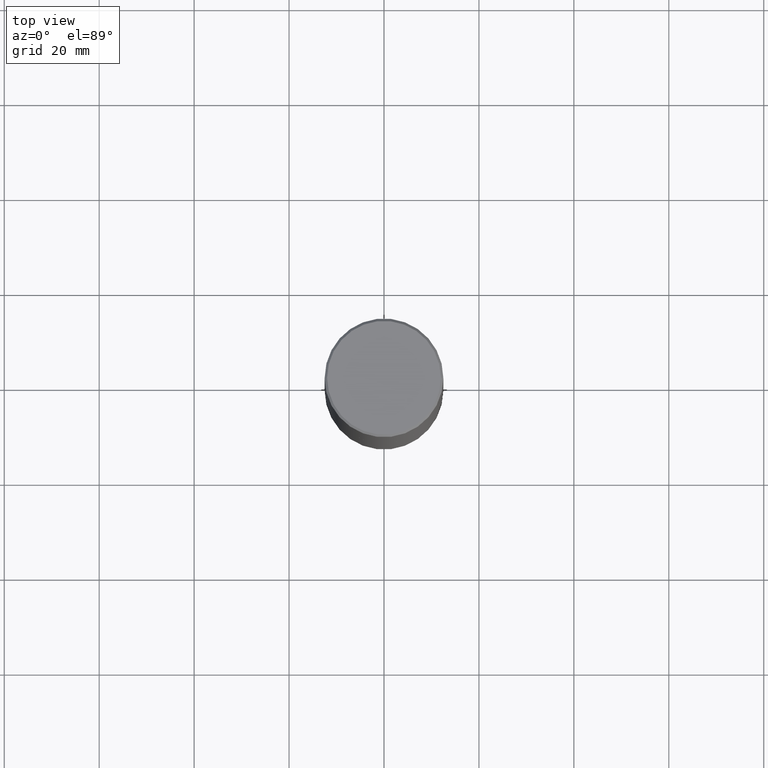
[diagram: clean part render]
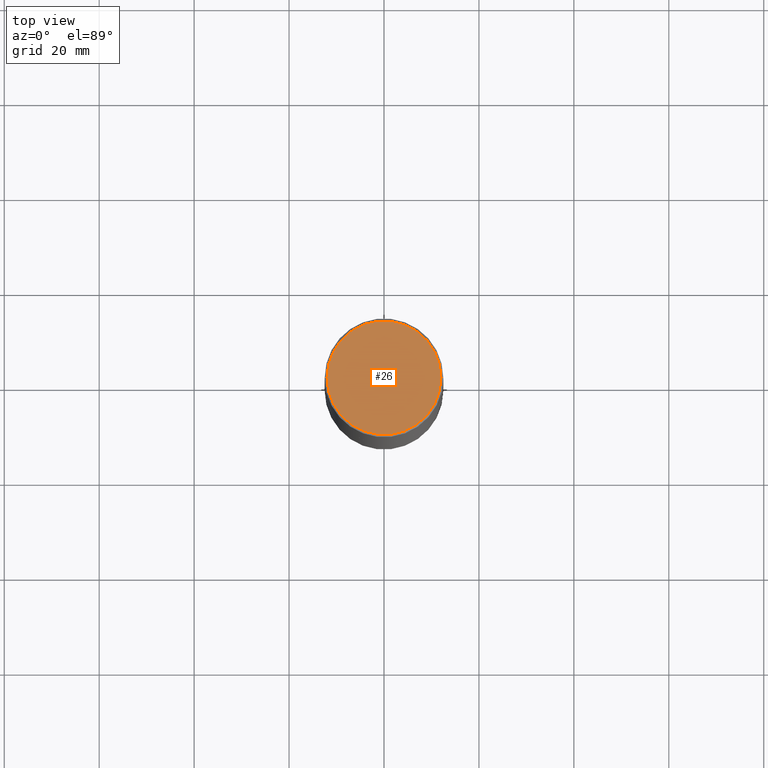
[diagram: same view with one face highlighted and labeled with its STEP entity id]
A machine part, top view. The second image highlights one B-rep face of the part: STEP entity #26.
In plain terms, the highlighted planar face has unit normal (0, -0, -1).
Its self-contained STEP definition (entity closure, byte-faithful):
#4 = CIRCLE ( 'NONE', #119, 0.4721499999999996255 ) ;
#16 = ORIENTED_EDGE ( 'NONE', *, *, #126, .T. ) ;
#26 = ADVANCED_FACE ( 'NONE', ( #166 ), #59, .F. ) ;
#34 = DIRECTION ( 'NONE',  ( 1.000000000000000000, -6.982962677686265922E-15, 4.876006802227162976E-29 ) ) ;
#37 = CARTESIAN_POINT ( 'NONE',  ( 0.4721499999999996255, -3.342703923013973396E-15, 8.537024980224040028E-18 ) ) ;
#53 = CARTESIAN_POINT ( 'NONE',  ( -0.4721499999999996255, 3.331920641657999252E-15, 8.537024980177643606E-18 ) ) ;
#59 = PLANE ( 'NONE',  #294 ) ;
#79 = CARTESIAN_POINT ( 'NONE',  ( -2.087702828670439639E-46, 2.980686340760894400E-32, 8.537024980200822558E-18 ) ) ;
#106 = DIRECTION ( 'NONE',  ( 1.000000000000000000, -6.982962677686265922E-15, 4.876006802227162976E-29 ) ) ;
#119 = AXIS2_PLACEMENT_3D ( 'NONE', #136, #138, #106 ) ;
#124 = EDGE_LOOP ( 'NONE', ( #16, #311 ) ) ;
#126 = EDGE_CURVE ( 'NONE', #145, #269, #4, .T. ) ;
#136 = CARTESIAN_POINT ( 'NONE',  ( -2.087702828670439639E-46, 2.980686340760894400E-32, 8.537024980200822558E-18 ) ) ;
#138 = DIRECTION ( 'NONE',  ( -2.445468806185136597E-29, 3.491481338843145583E-15, 1.000000000000000000 ) ) ;
#140 = DIRECTION ( 'NONE',  ( -1.000000000000000000, 6.982962677686265922E-15, -4.876176775795935793E-29 ) ) ;
#145 = VERTEX_POINT ( 'NONE', #53 ) ;
#165 = DIRECTION ( 'NONE',  ( -2.445468806185136597E-29, 3.491481338843145583E-15, 1.000000000000000000 ) ) ;
#166 = FACE_OUTER_BOUND ( 'NONE', #124, .T. ) ;
#169 = CARTESIAN_POINT ( 'NONE',  ( 3.297005828269567997E-15, 0.4721499999999996255, -1.644234401644689488E-15 ) ) ;
#232 = EDGE_CURVE ( 'NONE', #269, #145, #335, .T. ) ;
#269 = VERTEX_POINT ( 'NONE', #37 ) ;
#285 = DIRECTION ( 'NONE',  ( 2.438088387897960049E-29, -3.491481338843145188E-15, -1.000000000000000000 ) ) ;
#294 = AXIS2_PLACEMENT_3D ( 'NONE', #169, #285, #140 ) ;
#311 = ORIENTED_EDGE ( 'NONE', *, *, #232, .T. ) ;
#325 = AXIS2_PLACEMENT_3D ( 'NONE', #79, #165, #34 ) ;
#335 = CIRCLE ( 'NONE', #325, 0.4721499999999996255 ) ;